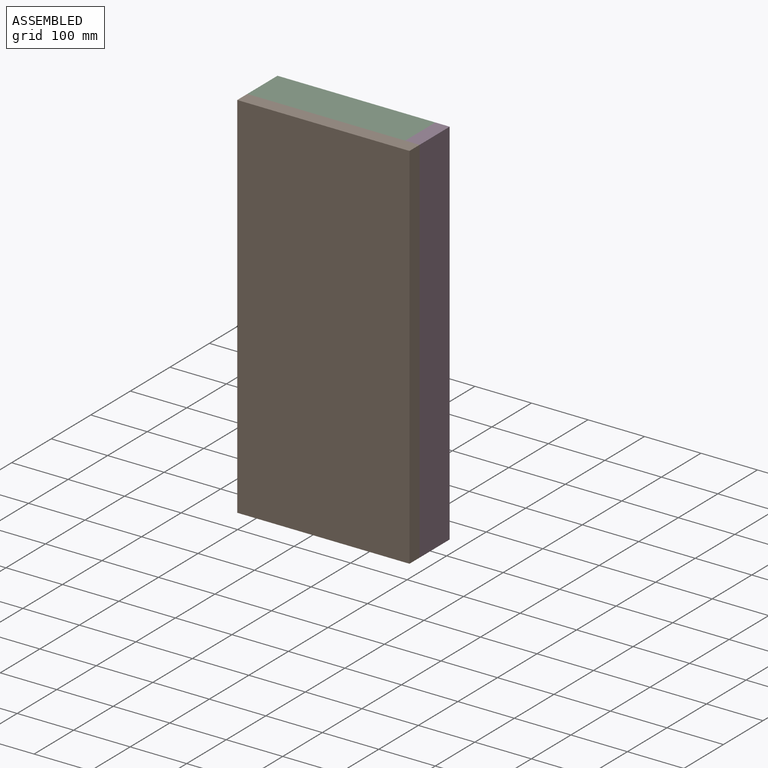
[diagram: assembled view]
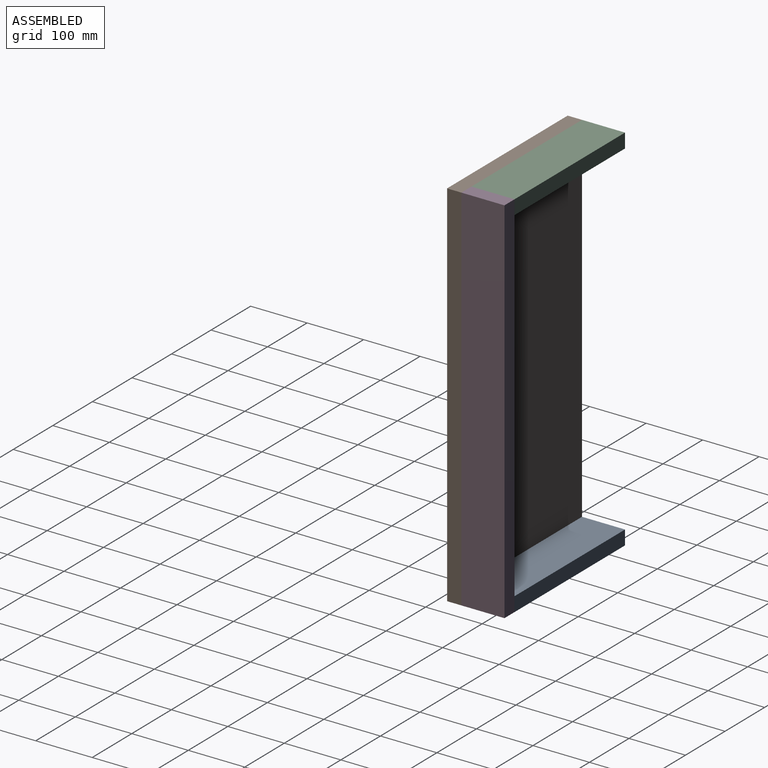
[diagram: assembled view, second angle]
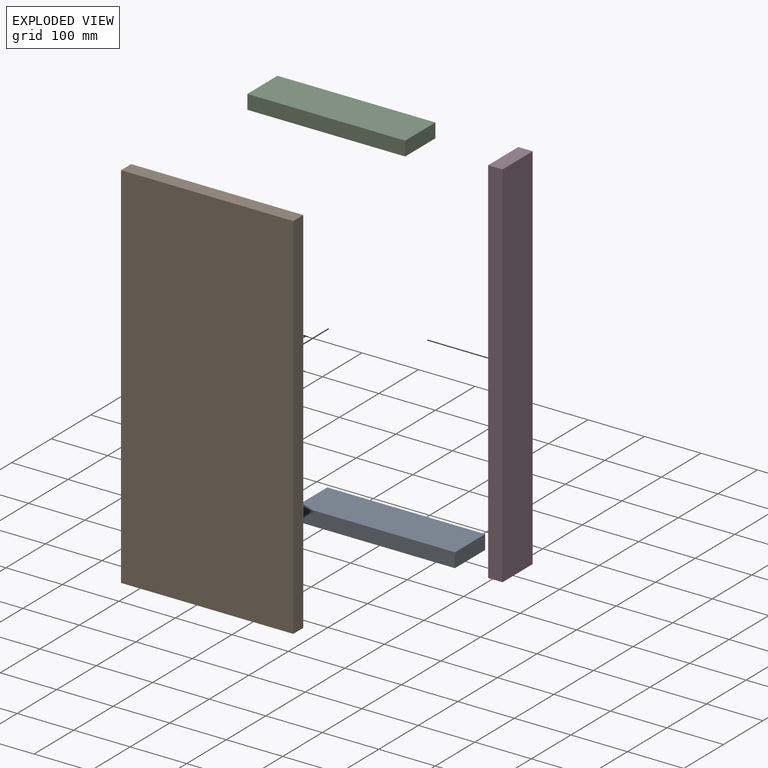
[diagram: exploded view]
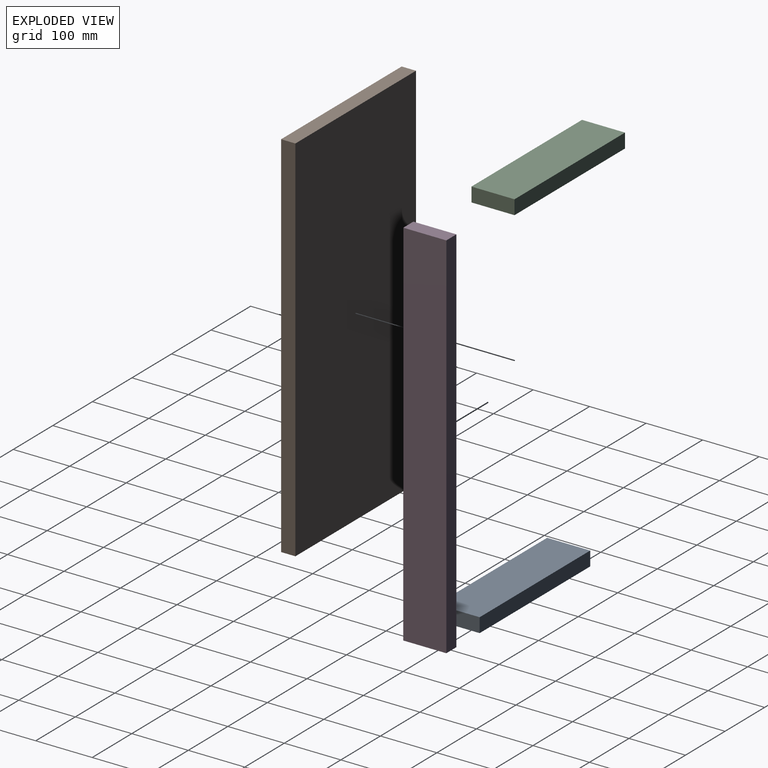
[diagram: exploded view, second angle]
ASSEMBLY  parts=4 mates=3
PART A: 6 faces, bbox 279.4x76.2x25.4 mm
  f0: plane 279.4x25.4mm, normal (0,1,0), area 7096.8mm2, adj f1,f3,f4,f5
  f1: plane 76.2x25.4mm, normal (-1,0,0), area 1935.5mm2, adj f0,f2,f4,f5
  f2: plane 279.4x25.4mm, normal (0,-1,0), area 7096.8mm2, adj f1,f3,f4,f5
  f3: plane 76.2x25.4mm, normal (1,0,0), area 1935.5mm2, adj f0,f2,f4,f5
  f4: plane 279.4x76.2mm, normal (0,0,1), area 21290.3mm2, adj f0,f1,f2,f3
  f5: plane 279.4x76.2mm, normal (0,0,-1), area 21290.3mm2, adj f0,f1,f2,f3
PART B: 6 faces, bbox 660.4x304.8x25.4 mm
  f0: plane 660.4x25.4mm, normal (0,1,0), area 16774.2mm2, adj f1,f3,f4,f5
  f1: plane 304.8x25.4mm, normal (-1,0,0), area 7741.9mm2, adj f0,f2,f4,f5
  f2: plane 660.4x25.4mm, normal (0,-1,0), area 16774.2mm2, adj f1,f3,f4,f5
  f3: plane 304.8x25.4mm, normal (1,0,0), area 7741.9mm2, adj f0,f2,f4,f5
  f4: plane 660.4x304.8mm, normal (0,0,1), area 201289.9mm2, adj f0,f1,f2,f3
  f5: plane 660.4x304.8mm, normal (0,0,-1), area 201289.9mm2, adj f0,f1,f2,f3
PART C: same geometry as A
PART D: 6 faces, bbox 660.4x76.2x25.4 mm
  f0: plane 660.4x25.4mm, normal (0,1,0), area 16774.2mm2, adj f1,f3,f4,f5
  f1: plane 76.2x25.4mm, normal (-1,0,0), area 1935.5mm2, adj f0,f2,f4,f5
  f2: plane 660.4x25.4mm, normal (0,-1,0), area 16774.2mm2, adj f1,f3,f4,f5
  f3: plane 76.2x25.4mm, normal (1,0,0), area 1935.5mm2, adj f0,f2,f4,f5
  f4: plane 660.4x76.2mm, normal (0,0,1), area 50322.5mm2, adj f0,f1,f2,f3
  f5: plane 660.4x76.2mm, normal (0,0,-1), area 50322.5mm2, adj f0,f1,f2,f3
PLACE A rot(axis=(1,0,0),180deg) t=(-180.07,-208.98,-596.3)mm
PLACE B rot(axis=(-0.58,0.58,0.58),120deg) t=(-167.37,-272.48,-291.5)mm
PLACE C t=(-180.07,-208.98,13.3)mm
PLACE D rot(axis=(0.71,0,-0.71),180deg) t=(-14.97,-208.98,-291.5)mm
MATE planar A.f3 <-> D.f4  axis (1,0,0) through (-40.37,-247.08,-621.7)mm
MATE planar B.f4 <-> C.f2  axis (0,1,0) through (-319.77,-247.08,38.7)mm
MATE planar D.f4 <-> C.f3  axis (-1,0,0) through (-40.37,-247.08,38.7)mm
